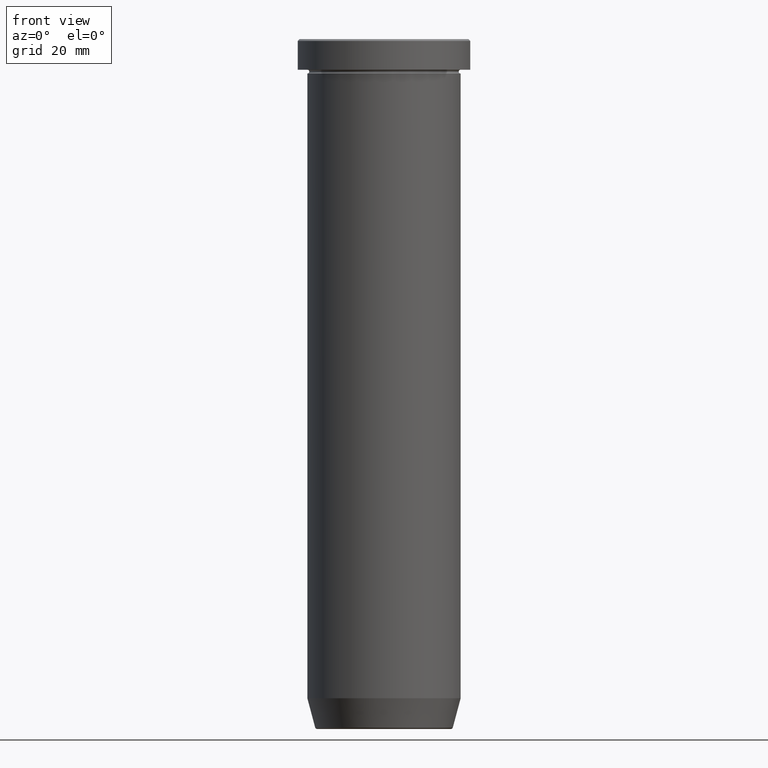
[diagram: clean part render]
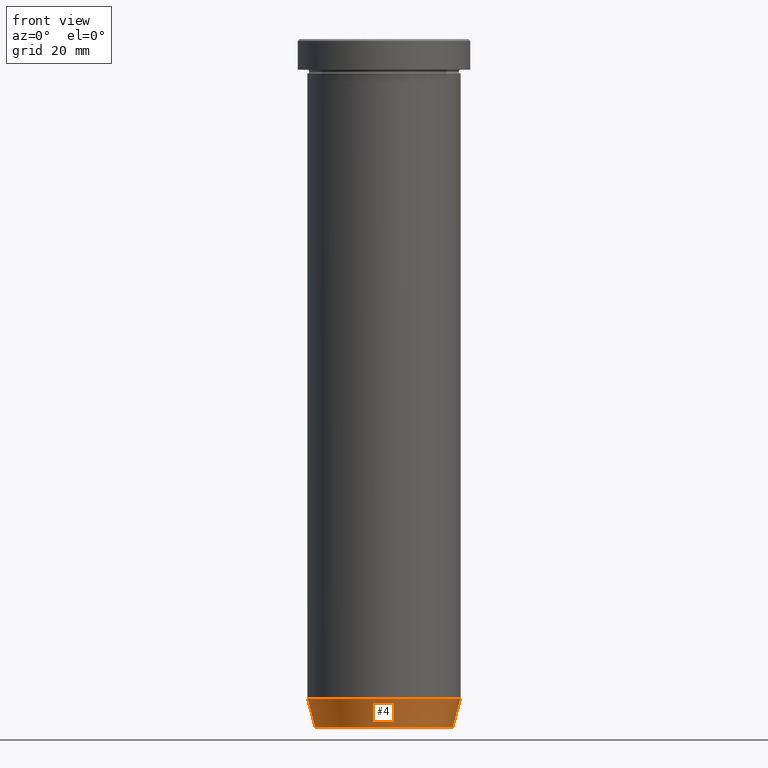
[diagram: same view with one face highlighted and labeled with its STEP entity id]
A machine part, front view. The second image highlights one B-rep face of the part: STEP entity #4.
In plain terms, the highlighted conical surface has half-angle 15 deg.
Its self-contained STEP definition (entity closure, byte-faithful):
#4 = ADVANCED_FACE ( 'NONE', ( #158 ), #428, .T. ) ;
#7 = EDGE_LOOP ( 'NONE', ( #441, #82, #424, #305 ) ) ;
#82 = ORIENTED_EDGE ( 'NONE', *, *, #478, .T. ) ;
#88 = CARTESIAN_POINT ( 'NONE',  ( 17.95570587970608045, 0.000000000000000000, -179.6294095225512422 ) ) ;
#109 = CARTESIAN_POINT ( 'NONE',  ( -20.00000000000000355, 2.449293598294706907E-15, -172.0000000000000000 ) ) ;
#113 = CARTESIAN_POINT ( 'NONE',  ( 0.000000000000000000, 0.000000000000000000, -179.6294095225512422 ) ) ;
#114 = AXIS2_PLACEMENT_3D ( 'NONE', #426, #182, #512 ) ;
#120 = VERTEX_POINT ( 'NONE', #88 ) ;
#158 = FACE_OUTER_BOUND ( 'NONE', #7, .T. ) ;
#159 = VECTOR ( 'NONE', #484, 1000.000000000000000 ) ;
#182 = DIRECTION ( 'NONE',  ( -0.000000000000000000, -0.000000000000000000, 1.000000000000000000 ) ) ;
#185 = AXIS2_PLACEMENT_3D ( 'NONE', #113, #523, #571 ) ;
#199 = DIRECTION ( 'NONE',  ( -0.000000000000000000, -0.000000000000000000, 1.000000000000000000 ) ) ;
#242 = AXIS2_PLACEMENT_3D ( 'NONE', #528, #199, #537 ) ;
#247 = LINE ( 'NONE', #393, #284 ) ;
#284 = VECTOR ( 'NONE', #383, 1000.000000000000000 ) ;
#298 = CARTESIAN_POINT ( 'NONE',  ( 17.85640646055102110, 0.000000000000000000, -180.0000000000000000 ) ) ;
#305 = ORIENTED_EDGE ( 'NONE', *, *, #323, .F. ) ;
#323 = EDGE_CURVE ( 'NONE', #491, #336, #500, .T. ) ;
#336 = VERTEX_POINT ( 'NONE', #418 ) ;
#383 = DIRECTION ( 'NONE',  ( -0.2588190451025205174, 3.169619151431761860E-17, 0.9659258262890684232 ) ) ;
#385 = LINE ( 'NONE', #298, #159 ) ;
#393 = CARTESIAN_POINT ( 'NONE',  ( -17.85640646055102110, 2.186779101618792840E-15, -180.0000000000000000 ) ) ;
#413 = CIRCLE ( 'NONE', #185, 17.95570587970608045 ) ;
#418 = CARTESIAN_POINT ( 'NONE',  ( 20.00000000000000355, 0.000000000000000000, -172.0000000000000000 ) ) ;
#424 = ORIENTED_EDGE ( 'NONE', *, *, #544, .T. ) ;
#426 = CARTESIAN_POINT ( 'NONE',  ( 0.000000000000000000, 0.000000000000000000, -172.0000000000000000 ) ) ;
#428 = CONICAL_SURFACE ( 'NONE', #242, 17.85640646055102110, 0.2617993877991491858 ) ;
#440 = CARTESIAN_POINT ( 'NONE',  ( -17.95570587970608045, 2.324116685748021765E-15, -179.6294095225512422 ) ) ;
#441 = ORIENTED_EDGE ( 'NONE', *, *, #465, .F. ) ;
#461 = VERTEX_POINT ( 'NONE', #440 ) ;
#465 = EDGE_CURVE ( 'NONE', #461, #491, #247, .T. ) ;
#478 = EDGE_CURVE ( 'NONE', #461, #120, #413, .T. ) ;
#484 = DIRECTION ( 'NONE',  ( 0.2588190451025205174, 0.000000000000000000, 0.9659258262890684232 ) ) ;
#491 = VERTEX_POINT ( 'NONE', #109 ) ;
#500 = CIRCLE ( 'NONE', #114, 20.00000000000000355 ) ;
#512 = DIRECTION ( 'NONE',  ( 1.000000000000000000, 0.000000000000000000, 0.000000000000000000 ) ) ;
#523 = DIRECTION ( 'NONE',  ( -0.000000000000000000, -0.000000000000000000, 1.000000000000000000 ) ) ;
#528 = CARTESIAN_POINT ( 'NONE',  ( 0.000000000000000000, 0.000000000000000000, -180.0000000000000000 ) ) ;
#537 = DIRECTION ( 'NONE',  ( 1.000000000000000000, 0.000000000000000000, 0.000000000000000000 ) ) ;
#544 = EDGE_CURVE ( 'NONE', #120, #336, #385, .T. ) ;
#571 = DIRECTION ( 'NONE',  ( -1.000000000000000000, 0.000000000000000000, 0.000000000000000000 ) ) ;